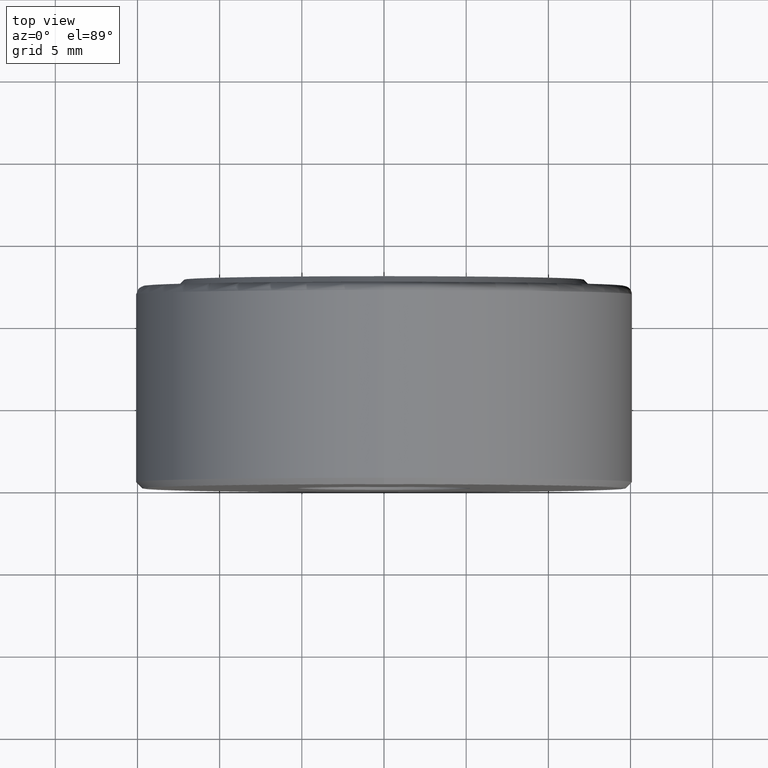
[diagram: clean part render]
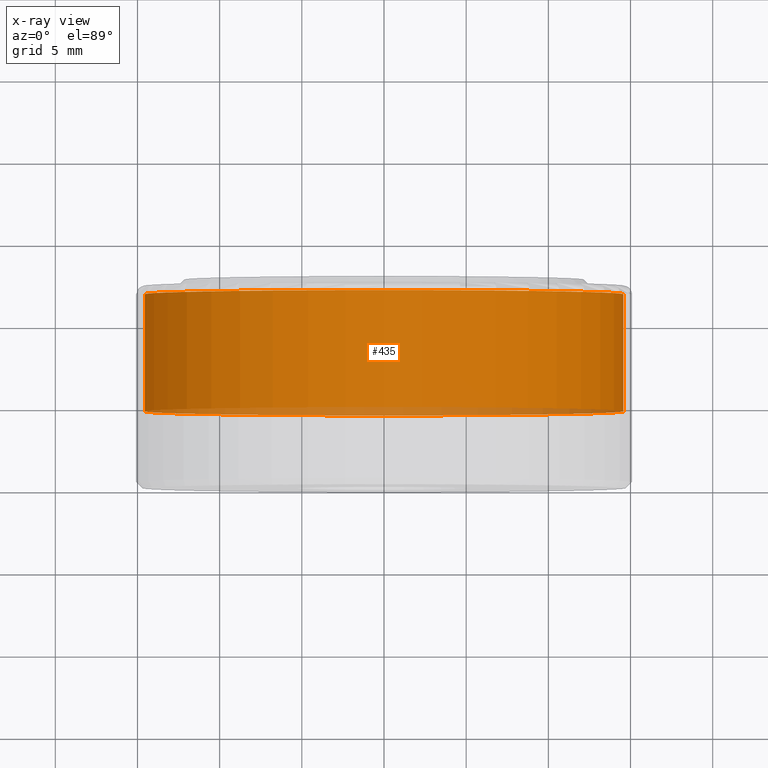
[diagram: x-ray — body ghosted, one internal face saturated and labeled with its STEP entity id]
A machine part, top view, then the same camera in x-ray: the body is ghosted and one INTERNAL B-rep face — a face not visible from any outside direction — is saturated and labeled: STEP entity #435.
In plain terms, the highlighted cylindrical surface (bore or boss wall) has radius 14.5732 mm, axis along (-0, 1, -0).
Its self-contained STEP definition (entity closure, byte-faithful):
#12 = EDGE_CURVE ( 'NONE', #48, #48, #500, .T. ) ;
#22 = ORIENTED_EDGE ( 'NONE', *, *, #12, .T. ) ;
#44 = DIRECTION ( 'NONE',  ( 0.0000000000000000000, 0.0000000000000000000, 1.000000000000000000 ) ) ;
#48 = VERTEX_POINT ( 'NONE', #514 ) ;
#79 = CYLINDRICAL_SURFACE ( 'NONE', #173, 0.5737499999999999800 ) ;
#102 = VERTEX_POINT ( 'NONE', #602 ) ;
#118 = DIRECTION ( 'NONE',  ( 0.0000000000000000000, 0.0000000000000000000, 1.000000000000000000 ) ) ;
#123 = CARTESIAN_POINT ( 'NONE',  ( 0.0000000000000000000, 0.1843749999999999600, 0.0000000000000000000 ) ) ;
#134 = EDGE_CURVE ( 'NONE', #102, #102, #456, .T. ) ;
#141 = FACE_OUTER_BOUND ( 'NONE', #409, .T. ) ;
#173 = AXIS2_PLACEMENT_3D ( 'NONE', #421, #234, #44 ) ;
#234 = DIRECTION ( 'NONE',  ( -0.0000000000000000000, 1.000000000000000000, -0.0000000000000000000 ) ) ;
#239 = AXIS2_PLACEMENT_3D ( 'NONE', #123, #485, #534 ) ;
#248 = AXIS2_PLACEMENT_3D ( 'NONE', #351, #397, #118 ) ;
#250 = EDGE_LOOP ( 'NONE', ( #22 ) ) ;
#306 = ORIENTED_EDGE ( 'NONE', *, *, #134, .F. ) ;
#351 = CARTESIAN_POINT ( 'NONE',  ( 0.0000000000000000000, 0.4650000000000000800, 0.0000000000000000000 ) ) ;
#397 = DIRECTION ( 'NONE',  ( -0.0000000000000000000, 1.000000000000000000, -0.0000000000000000000 ) ) ;
#409 = EDGE_LOOP ( 'NONE', ( #306 ) ) ;
#421 = CARTESIAN_POINT ( 'NONE',  ( 0.0000000000000000000, 0.0000000000000000000, 0.0000000000000000000 ) ) ;
#435 = ADVANCED_FACE ( 'NONE', ( #141, #471 ), #79, .F. ) ;
#456 = CIRCLE ( 'NONE', #239, 0.5737499999999999800 ) ;
#471 = FACE_OUTER_BOUND ( 'NONE', #250, .T. ) ;
#485 = DIRECTION ( 'NONE',  ( -0.0000000000000000000, 1.000000000000000000, -0.0000000000000000000 ) ) ;
#500 = CIRCLE ( 'NONE', #248, 0.5737499999999999800 ) ;
#514 = CARTESIAN_POINT ( 'NONE',  ( 0.0000000000000000000, 0.4650000000000000800, 0.5737499999999999800 ) ) ;
#534 = DIRECTION ( 'NONE',  ( 0.0000000000000000000, 0.0000000000000000000, 1.000000000000000000 ) ) ;
#602 = CARTESIAN_POINT ( 'NONE',  ( 0.0000000000000000000, 0.1843749999999999600, 0.5737499999999999800 ) ) ;